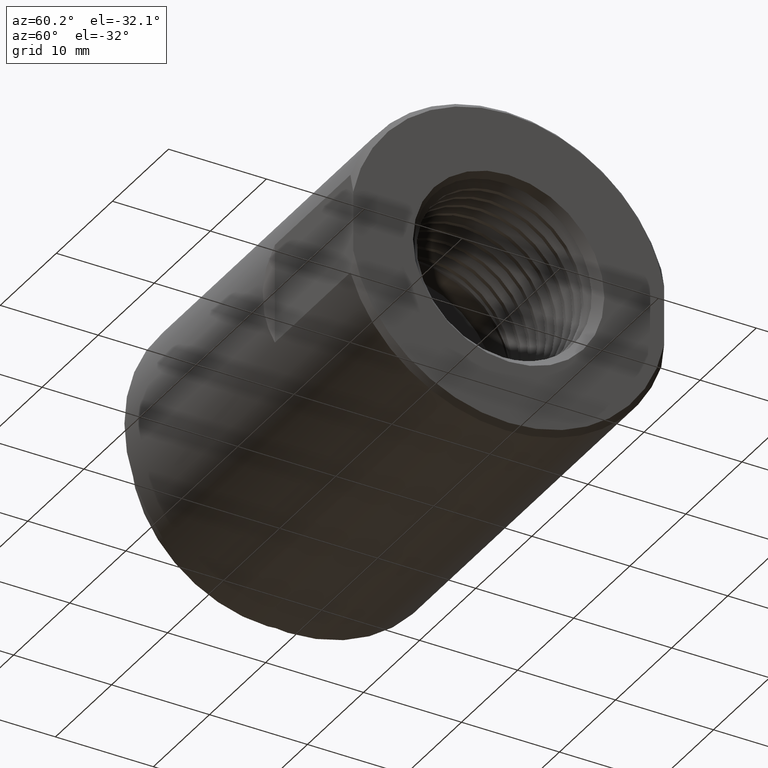
[diagram: clean part render]
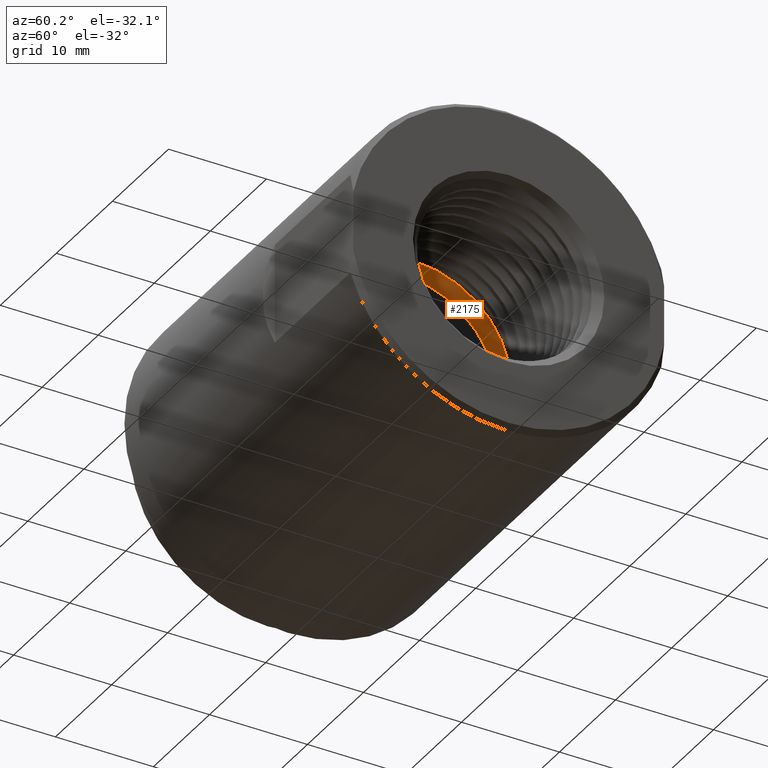
[diagram: same view with one face highlighted and labeled with its STEP entity id]
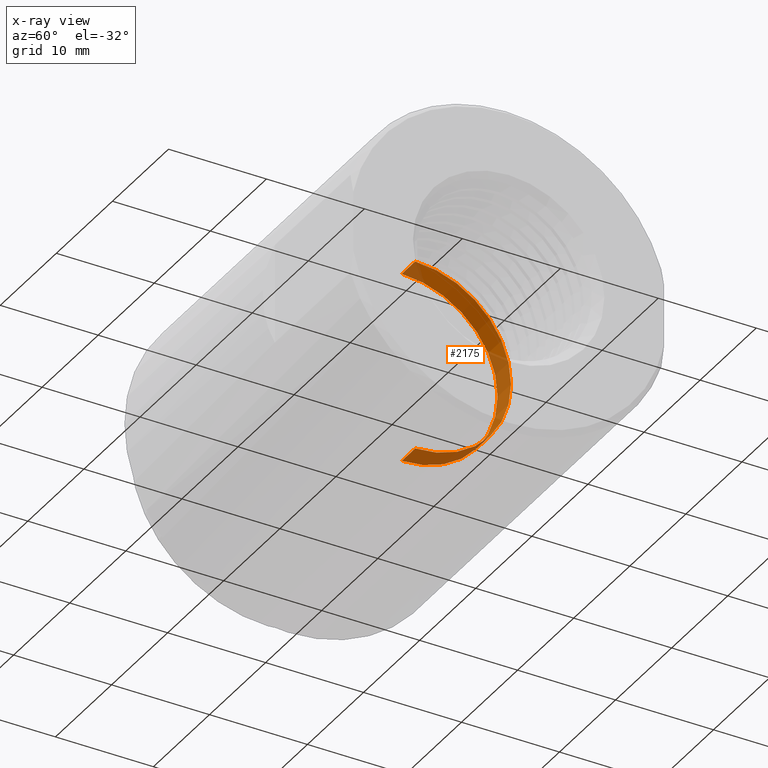
[diagram: x-ray of the same camera — body ghosted, the highlighted face saturated]
A machine part, auxiliary view. The second image highlights one B-rep face of the part: STEP entity #2175.
The next image is the same camera in x-ray: the body ghosted, the highlighted face saturated — about 49% of this face is hidden behind the body in this view.
In plain terms, the highlighted cylindrical surface (partial cylindrical patch) has radius 9.779 mm, axis along (-1, -0, -0).
Its self-contained STEP definition (entity closure, byte-faithful):
#155 = DIRECTION ( 'NONE',  ( 0.0000000000000000000, 0.0000000000000000000, 1.000000000000000000 ) ) ;
#180 = CARTESIAN_POINT ( 'NONE',  ( 0.6564999999999999725, 4.714890176717313582E-17, -0.3850000000000002864 ) ) ;
#226 = CARTESIAN_POINT ( 'NONE',  ( 0.5624999999999998890, 0.0000000000000000000, 0.3850000000000001199 ) ) ;
#488 = CARTESIAN_POINT ( 'NONE',  ( 0.0000000000000000000, 0.0000000000000000000, 0.0000000000000000000 ) ) ;
#1103 = VERTEX_POINT ( 'NONE', #226 ) ;
#1593 = AXIS2_PLACEMENT_3D ( 'NONE', #488, #2165, #5789 ) ;
#2054 = CARTESIAN_POINT ( 'NONE',  ( 0.0000000000000000000, 0.0000000000000000000, 0.3850000000000001754 ) ) ;
#2165 = DIRECTION ( 'NONE',  ( -1.000000000000000000, -0.0000000000000000000, -0.0000000000000000000 ) ) ;
#2175 = ADVANCED_FACE ( 'NONE', ( #6812 ), #10341, .F. ) ;
#2564 = DIRECTION ( 'NONE',  ( -1.000000000000000000, -0.0000000000000000000, -0.0000000000000000000 ) ) ;
#3213 = DIRECTION ( 'NONE',  ( -1.000000000000000000, -0.0000000000000000000, -0.0000000000000000000 ) ) ;
#3430 = DIRECTION ( 'NONE',  ( -1.000000000000000000, -0.0000000000000000000, -0.0000000000000000000 ) ) ;
#4001 = VERTEX_POINT ( 'NONE', #180 ) ;
#4638 = EDGE_CURVE ( 'NONE', #7177, #1103, #7247, .T. ) ;
#4954 = ORIENTED_EDGE ( 'NONE', *, *, #4638, .T. ) ;
#5542 = EDGE_LOOP ( 'NONE', ( #7776, #5552, #4954, #9478 ) ) ;
#5552 = ORIENTED_EDGE ( 'NONE', *, *, #5799, .F. ) ;
#5789 = DIRECTION ( 'NONE',  ( 0.0000000000000000000, 0.0000000000000000000, 1.000000000000000000 ) ) ;
#5799 = EDGE_CURVE ( 'NONE', #7177, #4001, #9920, .T. ) ;
#6812 = FACE_OUTER_BOUND ( 'NONE', #5542, .T. ) ;
#7177 = VERTEX_POINT ( 'NONE', #8199 ) ;
#7247 = LINE ( 'NONE', #2054, #8113 ) ;
#7771 = EDGE_CURVE ( 'NONE', #4001, #8164, #7872, .T. ) ;
#7776 = ORIENTED_EDGE ( 'NONE', *, *, #7771, .F. ) ;
#7872 = LINE ( 'NONE', #10435, #10605 ) ;
#8113 = VECTOR ( 'NONE', #3430, 39.37007874015748143 ) ;
#8164 = VERTEX_POINT ( 'NONE', #10810 ) ;
#8199 = CARTESIAN_POINT ( 'NONE',  ( 0.6564999999999999725, 0.0000000000000000000, 0.3850000000000002864 ) ) ;
#8270 = CARTESIAN_POINT ( 'NONE',  ( 0.5624999999999998890, 0.0000000000000000000, 0.0000000000000000000 ) ) ;
#8957 = CARTESIAN_POINT ( 'NONE',  ( 0.6564999999999999725, 0.0000000000000000000, 0.0000000000000000000 ) ) ;
#9107 = DIRECTION ( 'NONE',  ( -1.000000000000000000, -0.0000000000000000000, -0.0000000000000000000 ) ) ;
#9478 = ORIENTED_EDGE ( 'NONE', *, *, #10097, .T. ) ;
#9846 = DIRECTION ( 'NONE',  ( 0.0000000000000000000, 0.0000000000000000000, 1.000000000000000000 ) ) ;
#9920 = CIRCLE ( 'NONE', #11640, 0.3850000000000002864 ) ;
#10097 = EDGE_CURVE ( 'NONE', #1103, #8164, #10448, .T. ) ;
#10341 = CYLINDRICAL_SURFACE ( 'NONE', #1593, 0.3850000000000001754 ) ;
#10435 = CARTESIAN_POINT ( 'NONE',  ( 0.0000000000000000000, 4.714890176717312350E-17, -0.3850000000000001754 ) ) ;
#10448 = CIRCLE ( 'NONE', #10812, 0.3850000000000001199 ) ;
#10605 = VECTOR ( 'NONE', #3213, 39.37007874015748143 ) ;
#10810 = CARTESIAN_POINT ( 'NONE',  ( 0.5624999999999998890, 4.714890176717312350E-17, -0.3850000000000001199 ) ) ;
#10812 = AXIS2_PLACEMENT_3D ( 'NONE', #8270, #9107, #155 ) ;
#11640 = AXIS2_PLACEMENT_3D ( 'NONE', #8957, #2564, #9846 ) ;